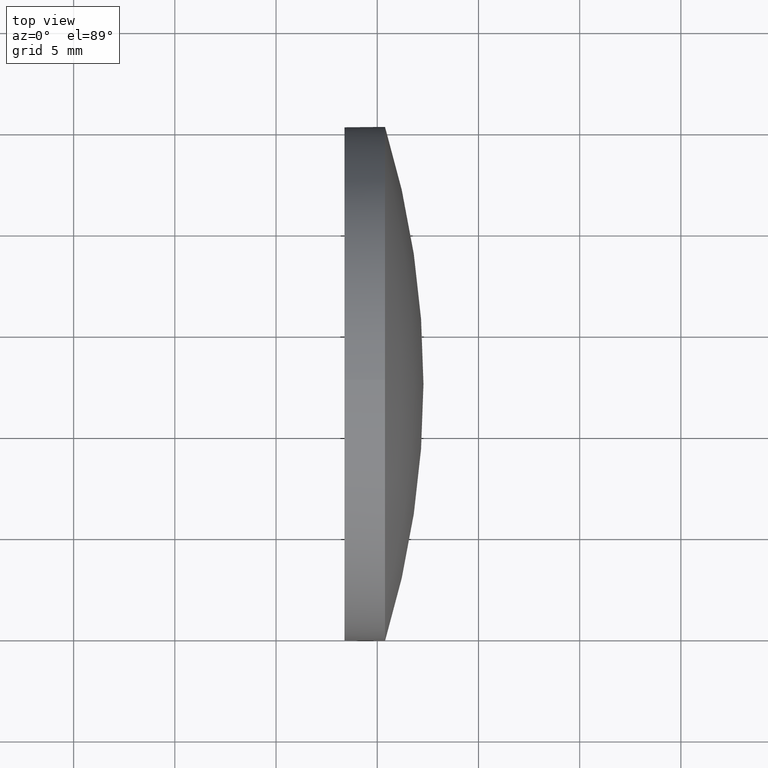
[diagram: clean part render]
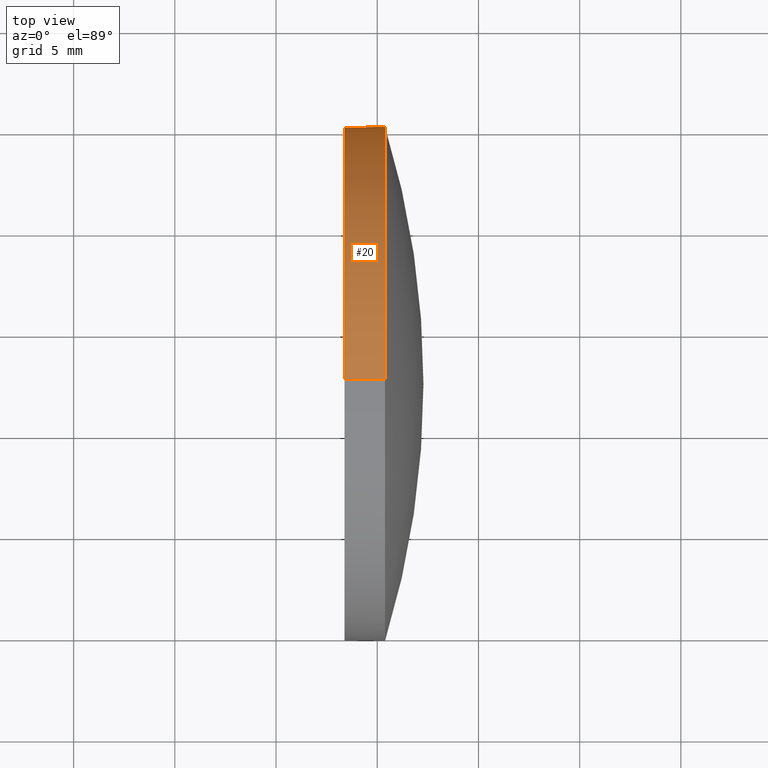
[diagram: same view with one face highlighted and labeled with its STEP entity id]
A machine part, top view. The second image highlights one B-rep face of the part: STEP entity #20.
In plain terms, the highlighted cylindrical surface (partial cylindrical patch) has radius 12.7 mm, axis along (-1, -0, -0).
Its self-contained STEP definition (entity closure, byte-faithful):
#1 = DIRECTION ( 'NONE',  ( -1.000000000000000000, -0.0000000000000000000, -0.0000000000000000000 ) ) ;
#9 = AXIS2_PLACEMENT_3D ( 'NONE', #116, #118, #25 ) ;
#12 = EDGE_CURVE ( 'NONE', #47, #23, #92, .T. ) ;
#14 = ORIENTED_EDGE ( 'NONE', *, *, #60, .T. ) ;
#17 = ORIENTED_EDGE ( 'NONE', *, *, #12, .T. ) ;
#20 = ADVANCED_FACE ( 'NONE', ( #171 ), #140, .T. ) ;
#23 = VERTEX_POINT ( 'NONE', #157 ) ;
#24 = AXIS2_PLACEMENT_3D ( 'NONE', #42, #156, #91 ) ;
#25 = DIRECTION ( 'NONE',  ( 0.0000000000000000000, 0.0000000000000000000, 1.000000000000000000 ) ) ;
#26 = CARTESIAN_POINT ( 'NONE',  ( 522.6446326252653300, 102.4595338729133400, -12.70000000000000300 ) ) ;
#28 = DIRECTION ( 'NONE',  ( 0.0000000000000000000, 0.0000000000000000000, 1.000000000000000000 ) ) ;
#32 = EDGE_LOOP ( 'NONE', ( #17, #89, #96, #186, #14 ) ) ;
#33 = EDGE_CURVE ( 'NONE', #161, #183, #79, .T. ) ;
#39 = VECTOR ( 'NONE', #123, 1000.000000000000000 ) ;
#41 = AXIS2_PLACEMENT_3D ( 'NONE', #101, #1, #120 ) ;
#42 = CARTESIAN_POINT ( 'NONE',  ( 522.6446326252653300, 102.4595338729133400, 0.0000000000000000000 ) ) ;
#47 = VERTEX_POINT ( 'NONE', #122 ) ;
#55 = VERTEX_POINT ( 'NONE', #105 ) ;
#60 = EDGE_CURVE ( 'NONE', #55, #47, #110, .T. ) ;
#77 = EDGE_CURVE ( 'NONE', #23, #183, #144, .T. ) ;
#79 = CIRCLE ( 'NONE', #41, 12.70000000000000300 ) ;
#80 = CARTESIAN_POINT ( 'NONE',  ( 530.3828506609415900, 102.4595338729133400, 0.0000000000000000000 ) ) ;
#83 = CARTESIAN_POINT ( 'NONE',  ( 528.3828506609415900, 102.4595338729133400, 12.70000000000000300 ) ) ;
#88 = EDGE_CURVE ( 'NONE', #55, #161, #130, .T. ) ;
#89 = ORIENTED_EDGE ( 'NONE', *, *, #77, .T. ) ;
#91 = DIRECTION ( 'NONE',  ( 0.0000000000000000000, 0.0000000000000000000, 1.000000000000000000 ) ) ;
#92 = CIRCLE ( 'NONE', #9, 12.70000000000000300 ) ;
#96 = ORIENTED_EDGE ( 'NONE', *, *, #33, .F. ) ;
#101 = CARTESIAN_POINT ( 'NONE',  ( 528.3828506609415900, 102.4595338729133400, 0.0000000000000000000 ) ) ;
#105 = CARTESIAN_POINT ( 'NONE',  ( 530.3828506609415900, 102.4595338729133400, 12.70000000000000300 ) ) ;
#110 = CIRCLE ( 'NONE', #129, 12.70000000000000300 ) ;
#116 = CARTESIAN_POINT ( 'NONE',  ( 530.3828506609415900, 102.4595338729133400, 0.0000000000000000000 ) ) ;
#118 = DIRECTION ( 'NONE',  ( -1.000000000000000000, -0.0000000000000000000, -0.0000000000000000000 ) ) ;
#120 = DIRECTION ( 'NONE',  ( 0.0000000000000000000, 0.0000000000000000000, 1.000000000000000000 ) ) ;
#122 = CARTESIAN_POINT ( 'NONE',  ( 530.3828506609415900, 115.1595338729133900, 1.555301434917125400E-015 ) ) ;
#123 = DIRECTION ( 'NONE',  ( -1.000000000000000000, -0.0000000000000000000, -0.0000000000000000000 ) ) ;
#129 = AXIS2_PLACEMENT_3D ( 'NONE', #80, #172, #28 ) ;
#130 = LINE ( 'NONE', #132, #39 ) ;
#132 = CARTESIAN_POINT ( 'NONE',  ( 522.6446326252653300, 102.4595338729133400, 12.70000000000000300 ) ) ;
#133 = DIRECTION ( 'NONE',  ( -1.000000000000000000, -0.0000000000000000000, -0.0000000000000000000 ) ) ;
#140 = CYLINDRICAL_SURFACE ( 'NONE', #24, 12.70000000000000300 ) ;
#144 = LINE ( 'NONE', #26, #168 ) ;
#156 = DIRECTION ( 'NONE',  ( -1.000000000000000000, -0.0000000000000000000, -0.0000000000000000000 ) ) ;
#157 = CARTESIAN_POINT ( 'NONE',  ( 530.3828506609415900, 102.4595338729133400, -12.70000000000000300 ) ) ;
#161 = VERTEX_POINT ( 'NONE', #83 ) ;
#163 = CARTESIAN_POINT ( 'NONE',  ( 528.3828506609415900, 102.4595338729133400, -12.70000000000000300 ) ) ;
#168 = VECTOR ( 'NONE', #133, 1000.000000000000000 ) ;
#171 = FACE_OUTER_BOUND ( 'NONE', #32, .T. ) ;
#172 = DIRECTION ( 'NONE',  ( -1.000000000000000000, -0.0000000000000000000, -0.0000000000000000000 ) ) ;
#183 = VERTEX_POINT ( 'NONE', #163 ) ;
#186 = ORIENTED_EDGE ( 'NONE', *, *, #88, .F. ) ;